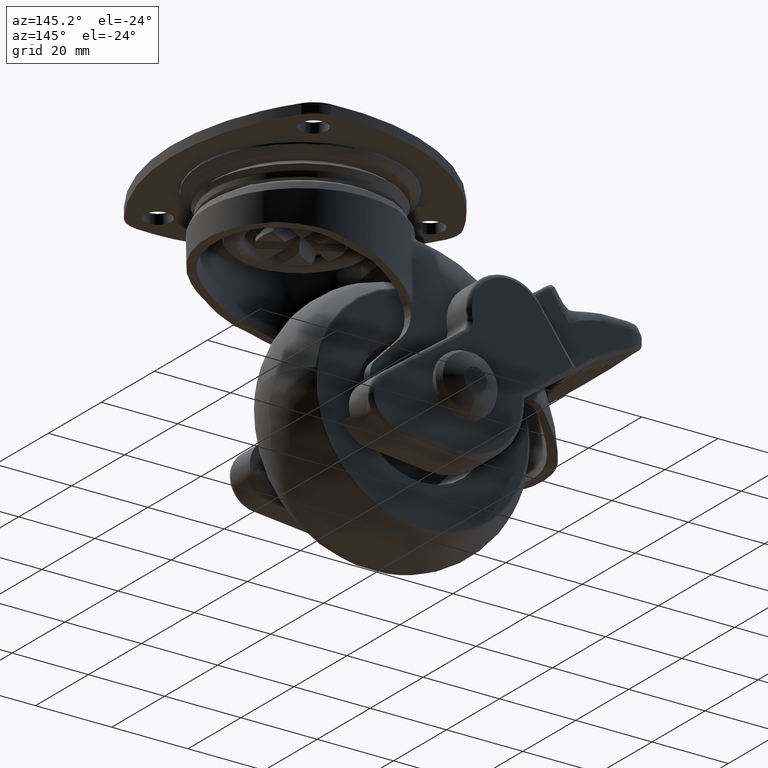
[diagram: clean part render]
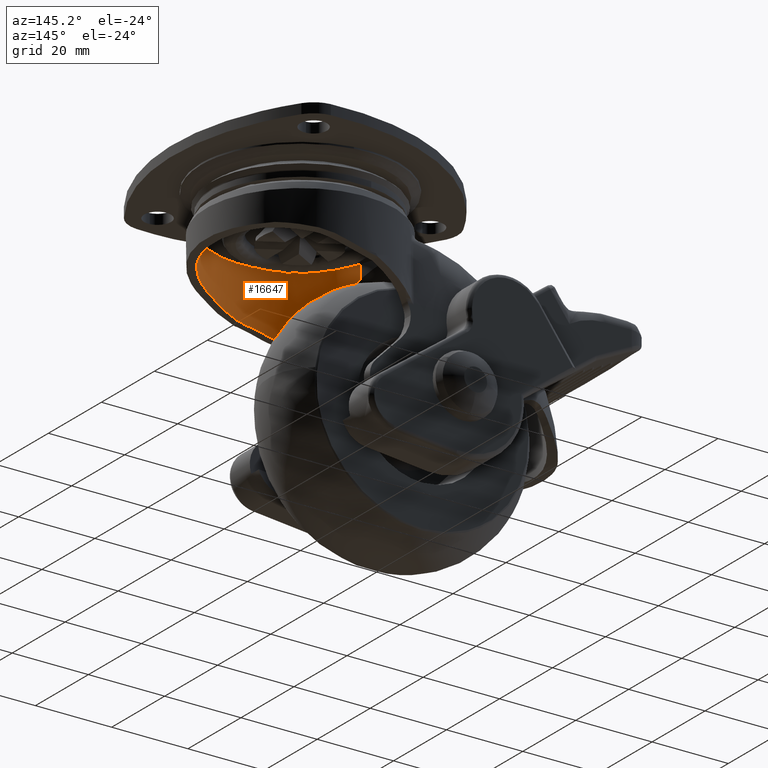
[diagram: same view with one face highlighted and labeled with its STEP entity id]
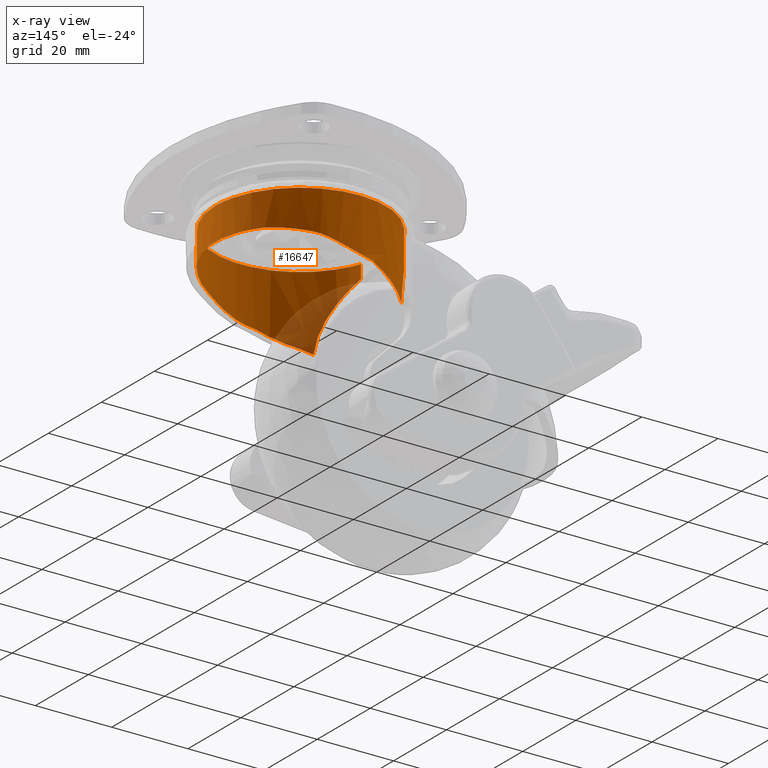
[diagram: x-ray of the same camera — body ghosted, the highlighted face saturated]
A machine part, auxiliary view. The second image highlights one B-rep face of the part: STEP entity #16647.
The next image is the same camera in x-ray: the body ghosted, the highlighted face saturated — about 11% of this face is hidden behind the body in this view.
In plain terms, the highlighted face is a freeform B-spline surface patch.
Its self-contained STEP definition (entity closure, byte-faithful):
#16177=CARTESIAN_POINT('',(-21.068975462576532,-7.502966721896206,-15.300075933190159));
#16178=VERTEX_POINT('',#16177);
#16179=CARTESIAN_POINT('',(-20.510110582208469,8.918061877866347,-16.197612352703320));
#16180=VERTEX_POINT('',#16179);
#16224=CARTESIAN_POINT('',(-20.510111605235540,8.918046791011248,-11.779209252110959));
#16225=VERTEX_POINT('',#16224);
#16226=CARTESIAN_POINT('',(-20.510111605235540,8.918046791011248,-11.779209252110959));
#16227=CARTESIAN_POINT('',(-20.510110582208469,8.918061877866347,-16.197612352703320));
#16228=QUASI_UNIFORM_CURVE('',1,(#16226,#16227),.UNSPECIFIED.,.F.,.U.);
#16229=EDGE_CURVE('',#16225,#16180,#16228,.T.);
#16246=CARTESIAN_POINT('',(-21.068979904705959,-7.502954244876372,-11.779209252110959));
#16247=VERTEX_POINT('',#16246);
#16261=CARTESIAN_POINT('',(-21.068979904705959,-7.502954244876372,-11.779209252110959));
#16262=CARTESIAN_POINT('',(-21.068975462576532,-7.502966721896206,-15.300075933190159));
#16263=QUASI_UNIFORM_CURVE('',1,(#16261,#16262),.UNSPECIFIED.,.F.,.U.);
#16264=EDGE_CURVE('',#16247,#16178,#16263,.T.);
#16269=CARTESIAN_POINT('',(-20.510110308262451,8.918049773846329,-11.289004876179430));
#16270=CARTESIAN_POINT('',(-11.592060534416122,29.428160082108782,-11.289004876179426));
#16271=CARTESIAN_POINT('',(8.918049773846329,20.510110308262451,-11.289004876179430));
#16272=CARTESIAN_POINT('',(29.428160082108782,11.592060534416122,-11.289004876179426));
#16273=CARTESIAN_POINT('',(20.510110308262451,-8.918049773846329,-11.289004876179430));
#16274=CARTESIAN_POINT('',(11.592060534416122,-29.428160082108782,-11.289004876179426));
#16275=CARTESIAN_POINT('',(-8.918049773846329,-20.510110308262451,-11.289004876179430));
#16276=CARTESIAN_POINT('',(-17.814493802778017,-16.641826351335652,-11.289004876179428));
#16277=CARTESIAN_POINT('',(-21.068974267334543,-7.502970075129555,-11.289004876179428));
#16278=CARTESIAN_POINT('',(-20.510110308262451,8.918049773846329,-31.889843774702079));
#16279=CARTESIAN_POINT('',(-11.592060534416122,29.428160082108782,-31.889843774702083));
#16280=CARTESIAN_POINT('',(8.918049773846329,20.510110308262451,-31.889843774702079));
#16281=CARTESIAN_POINT('',(29.428160082108782,11.592060534416122,-31.889843774702083));
#16282=CARTESIAN_POINT('',(20.510110308262451,-8.918049773846329,-31.889843774702079));
#16283=CARTESIAN_POINT('',(11.592060534416122,-29.428160082108782,-31.889843774702083));
#16284=CARTESIAN_POINT('',(-8.918049773846329,-20.510110308262451,-31.889843774702079));
#16285=CARTESIAN_POINT('',(-17.814493802778017,-16.641826351335652,-31.889843774702076));
#16286=CARTESIAN_POINT('',(-21.068974267334543,-7.502970075129555,-31.889843774702083));
#16294=(BOUNDED_SURFACE()B_SPLINE_SURFACE(2,1,((#16269,#16278),(#16270,#16279),(#16271,#16280),(#16272,#16281),(#16273,#16282),(#16274,#16283),(#16275,#16284),(#16276,#16285),(#16277,#16286)),.UNSPECIFIED.,.F.,.F.,.U.)B_SPLINE_SURFACE_WITH_KNOTS((3,2,2,2,3),(2,2),(0.0,37.055656844058717,74.111313688117448,111.166970532176190,130.435912091086690),(0.0,20.600838898522650),.UNSPECIFIED.)GEOMETRIC_REPRESENTATION_ITEM()RATIONAL_B_SPLINE_SURFACE(((1.0,1.0),(0.707106781186548,0.707106781186548),(1.0,1.0),(0.707106781186548,0.707106781186548),(1.0,1.0),(0.707106781186548,0.707106781186548),(1.0,1.0),(0.847695526217005,0.847695526217005),(0.853787705168324,0.853787705168324)))REPRESENTATION_ITEM('')SURFACE());
#16295=CARTESIAN_POINT('',(-14.980744298218060,-16.606430588699752,-31.387384289372250));
#16296=VERTEX_POINT('',#16295);
#16297=CARTESIAN_POINT('',(-14.980744298218060,-16.606430588699752,-31.387384289372250));
#16298=CARTESIAN_POINT('',(-15.002844482402811,-16.586493871052980,-31.091554995201580));
#16299=CARTESIAN_POINT('',(-15.030853953988490,-16.561151184500272,-30.796803040128118));
#16300=CARTESIAN_POINT('',(-15.081229740973200,-16.515243222101329,-30.356221646318168));
#16301=CARTESIAN_POINT('',(-15.099431586538071,-16.498608953594129,-30.209514624708021));
#16302=CARTESIAN_POINT('',(-15.138399588907660,-16.462860884663769,-29.917635449056331));
#16303=CARTESIAN_POINT('',(-15.159175687288251,-16.443738076563410,-29.772358312883679));
#16304=CARTESIAN_POINT('',(-15.269230107199579,-16.342007694624829,-29.049177343233719));
#16305=CARTESIAN_POINT('',(-15.376973524983800,-16.241140134700480,-28.480849555416729));
#16306=CARTESIAN_POINT('',(-15.625516738020060,-16.002161435490589,-27.362537085176619));
#16307=CARTESIAN_POINT('',(-15.766332368465379,-15.864033157509359,-26.812561004714802));
#16308=CARTESIAN_POINT('',(-16.075868655224880,-15.550280644366660,-25.729689135186248));
#16309=CARTESIAN_POINT('',(-16.244600344620171,-15.374650955286020,-25.196797630204770));
#16310=CARTESIAN_POINT('',(-16.515328366419471,-15.081704889055770,-24.409782952870110));
#16311=CARTESIAN_POINT('',(-16.608514376067760,-14.979127293532050,-24.149502918046220));
#16312=CARTESIAN_POINT('',(-16.752329884525270,-14.817585972606540,-23.762146664535049));
#16313=CARTESIAN_POINT('',(-16.800989083271229,-14.762404038845091,-23.633415357317631));
#16314=CARTESIAN_POINT('',(-16.899352567984192,-14.649699296701501,-23.377594633364701));
#16315=CARTESIAN_POINT('',(-16.949016027196251,-14.592224397691171,-23.250606188266541));
#16316=CARTESIAN_POINT('',(-17.199542658346012,-14.299198063955711,-22.620206262785839));
#16317=CARTESIAN_POINT('',(-17.407012223268691,-14.046735916386559,-22.130383787840351));
#16318=CARTESIAN_POINT('',(-17.831342772106630,-13.504002324788180,-21.178644802341669));
#16319=CARTESIAN_POINT('',(-18.048214602574941,-13.213734825672640,-20.716730824989320));
#16320=CARTESIAN_POINT('',(-18.487029360811810,-12.592481265525841,-19.820634330260319));
#16321=CARTESIAN_POINT('',(-18.708982833387871,-12.261507721414810,-19.386448860678829));
#16322=CARTESIAN_POINT('',(-18.986923051466420,-11.819638966852731,-18.861505171168979));
#16323=CARTESIAN_POINT('',(-19.042597499727052,-11.729751063249781,-18.757294130509500));
#16324=CARTESIAN_POINT('',(-19.153562644453789,-11.547667217490019,-18.551349886843109));
#16325=CARTESIAN_POINT('',(-19.319423023049762,-11.271109578312551,-18.246164997854152));
#16326=CARTESIAN_POINT('',(-19.483202931582792,-10.984130852780090,-17.952137869417129));
#16327=CARTESIAN_POINT('',(-19.807141989402329,-10.395854515136341,-17.378970496857949));
#16328=CARTESIAN_POINT('',(-20.018284240714038,-9.984619918449857,-17.016665012702848));
#16329=CARTESIAN_POINT('',(-20.426292883615709,-9.120904723397949,-16.332694418373929));
#16330=CARTESIAN_POINT('',(-20.623175413362510,-8.668444244126842,-16.011014832040850));
#16331=CARTESIAN_POINT('',(-20.857142908924370,-8.074164871854366,-15.635914864609370));
#16332=CARTESIAN_POINT('',(-20.903385102133520,-7.953714214292113,-15.562158185898550));
#16333=CARTESIAN_POINT('',(-20.989589549715639,-7.723141055348307,-15.425306640023351));
#16334=CARTESIAN_POINT('',(-21.029642584563529,-7.613416800033209,-15.361998849182569));
#16335=CARTESIAN_POINT('',(-21.068975462576532,-7.502966721896206,-15.300075933190159));
#16336=B_SPLINE_CURVE_WITH_KNOTS('',3,(#16297,#16298,#16299,#16300,#16301,#16302,#16303,#16304,#16305,#16306,#16307,#16308,#16309,#16310,#16311,#16312,#16313,#16314,#16315,#16316,#16317,#16318,#16319,#16320,#16321,#16322,#16323,#16324,#16325,#16326,#16327,#16328,#16329,#16330,#16331,#16332,#16333,#16334,#16335),.UNSPECIFIED.,.F.,.U.,(4,2,2,2,2,2,2,2,2,2,2,2,2,2,1,2,2,2,2,4),(0.0,0.015625000000000,0.023437500000000,0.031250000000000,0.062499999999999,0.093749999999999,0.124999999999999,0.140624999999998,0.148437499999998,0.156249999999998,0.187499999999998,0.218749999999997,0.249999999999997,0.257812499999997,0.265624999999997,0.281249999999997,0.312499999999997,0.343749999999997,0.351562499999997,0.358567318142314),.UNSPECIFIED.);
#16337=EDGE_CURVE('',#16296,#16178,#16336,.T.);
#16338=ORIENTED_EDGE('',*,*,#16337,.T.);
#16339=ORIENTED_EDGE('',*,*,#16264,.F.);
#16340=CARTESIAN_POINT('',(22.365067328892501,0.0,-11.779209252110959));
#16341=VERTEX_POINT('',#16340);
#16342=CARTESIAN_POINT('',(22.365067328892501,0.0,-11.779209252110959));
#16343=CARTESIAN_POINT('',(22.365067328892497,-22.365067328892497,-11.779209252110963));
#16344=CARTESIAN_POINT('',(0.0,-22.365067328892501,-11.779209252110959));
#16345=CARTESIAN_POINT('',(-15.776376515469096,-22.365067328892501,-11.779209252110963));
#16346=CARTESIAN_POINT('',(-21.068979904705966,-7.502954244876372,-11.779209252110963));
#16354=(BOUNDED_CURVE()B_SPLINE_CURVE(2,(#16342,#16343,#16344,#16345,#16346),.UNSPECIFIED.,.F.,.U.)B_SPLINE_CURVE_WITH_KNOTS((3,2,3),(0.0,0.250000000000000,0.443004121615846),.UNSPECIFIED.)CURVE()GEOMETRIC_REPRESENTATION_ITEM()RATIONAL_B_SPLINE_CURVE((1.0,0.707106781186548,1.0,0.773881606302687,0.896897468259262))REPRESENTATION_ITEM(''));
#16355=EDGE_CURVE('',#16341,#16247,#16354,.T.);
#16356=ORIENTED_EDGE('',*,*,#16355,.F.);
#16357=CARTESIAN_POINT('',(-20.510111605235540,8.918046791011248,-11.779209252110965));
#16358=CARTESIAN_POINT('',(-14.663182994379188,22.365067328892501,-11.779209252110963));
#16359=CARTESIAN_POINT('',(0.0,22.365067328892501,-11.779209252110959));
#16360=CARTESIAN_POINT('',(22.365067328892497,22.365067328892497,-11.779209252110963));
#16361=CARTESIAN_POINT('',(22.365067328892501,0.0,-11.779209252110959));
#16369=(BOUNDED_CURVE()B_SPLINE_CURVE(2,(#16357,#16358,#16359,#16360,#16361),.UNSPECIFIED.,.F.,.U.)B_SPLINE_CURVE_WITH_KNOTS((3,2,3),(0.567705881491353,0.750000000000000,1.0),.UNSPECIFIED.)CURVE()GEOMETRIC_REPRESENTATION_ITEM()RATIONAL_B_SPLINE_CURVE((0.884319981664056,0.786429155436966,1.0,0.707106781186548,1.0))REPRESENTATION_ITEM(''));
#16370=EDGE_CURVE('',#16225,#16341,#16369,.T.);
#16371=ORIENTED_EDGE('',*,*,#16370,.F.);
#16372=ORIENTED_EDGE('',*,*,#16229,.T.);
#16373=CARTESIAN_POINT('',(-14.980744298217980,16.606430588699801,-31.387384289372200));
#16374=VERTEX_POINT('',#16373);
#16375=CARTESIAN_POINT('',(-20.510110582208469,8.918061877866347,-16.197612352703320));
#16376=CARTESIAN_POINT('',(-20.413860984931969,9.139419799160342,-16.355380404835980));
#16377=CARTESIAN_POINT('',(-20.315555638347369,9.355689272134573,-16.518249436228270));
#16378=CARTESIAN_POINT('',(-20.013135353510599,9.994708302019324,-17.025491623793339));
#16379=CARTESIAN_POINT('',(-19.803576845156449,10.402498720120381,-17.385212160152939));
#16380=CARTESIAN_POINT('',(-19.374547003522601,11.181259543742399,-18.144470504615558));
#16381=CARTESIAN_POINT('',(-19.155063947433010,11.552221446421401,-18.544011982425950));
#16382=CARTESIAN_POINT('',(-18.877265971102918,11.993987301690151,-19.068602858397298));
#16383=CARTESIAN_POINT('',(-18.821561118534071,12.081195290374080,-19.174734899206431));
#16384=CARTESIAN_POINT('',(-18.710428276254898,12.252604548571609,-19.388467399487670));
#16385=CARTESIAN_POINT('',(-18.543941803144719,12.505531013281390,-19.711650350990279));
#16386=CARTESIAN_POINT('',(-18.378394492253591,12.746245982134321,-20.042512612872780));
#16387=CARTESIAN_POINT('',(-18.049345143434330,13.212182856426789,-20.714363742347629));
#16388=CARTESIAN_POINT('',(-17.832699584108081,13.502189721438670,-21.175740185725449));
#16389=CARTESIAN_POINT('',(-17.409127893609689,14.044094229507291,-22.125509043433809));
#16390=CARTESIAN_POINT('',(-17.202191260303330,14.295986905496800,-22.613899690212790));
#16391=CARTESIAN_POINT('',(-16.902513937870040,14.646662943843831,-23.367449365444081));
#16392=CARTESIAN_POINT('',(-16.804412926991318,14.759018768763591,-23.622133474303912));
#16393=CARTESIAN_POINT('',(-16.660423525393458,14.920843948209320,-24.009567517642971));
#16394=CARTESIAN_POINT('',(-16.612978896163440,14.973638449400960,-24.139553923230672));
#16395=CARTESIAN_POINT('',(-16.519590899439329,15.076605647453720,-24.400318410149922));
#16396=CARTESIAN_POINT('',(-16.473601553411861,15.126830218124660,-24.531219233135690));
#16397=CARTESIAN_POINT('',(-16.247339306051629,15.371767383007990,-25.188329339312560));
#16398=CARTESIAN_POINT('',(-16.078096526454541,15.547983874009940,-25.722334308785641));
#16399=CARTESIAN_POINT('',(-15.767609472103681,15.862771029741040,-26.807661975545759));
#16400=CARTESIAN_POINT('',(-15.626353901521361,16.001347369647480,-27.358980212113298));
#16401=CARTESIAN_POINT('',(-15.377061775829210,16.241060586198799,-28.480244725533488));
#16402=CARTESIAN_POINT('',(-15.269008936282789,16.342215093230390,-29.050182062631521));
#16403=CARTESIAN_POINT('',(-15.158702717711551,16.444173361342511,-29.775579843346691));
#16404=CARTESIAN_POINT('',(-15.137893900776220,16.463325026893241,-29.921258842376961));
#16405=CARTESIAN_POINT('',(-15.098997256388580,16.499005748050461,-30.212936123034599));
#16406=CARTESIAN_POINT('',(-15.080890512171120,16.515552328751749,-30.359055438449211));
#16407=CARTESIAN_POINT('',(-15.030716693887189,16.561274956360279,-30.798272585418040));
#16408=CARTESIAN_POINT('',(-15.002794129773260,16.586539143679300,-31.092228872213990));
#16409=CARTESIAN_POINT('',(-14.980744298217980,16.606430588699801,-31.387384289372200));
#16410=B_SPLINE_CURVE_WITH_KNOTS('',3,(#16375,#16376,#16377,#16378,#16379,#16380,#16381,#16382,#16383,#16384,#16385,#16386,#16387,#16388,#16389,#16390,#16391,#16392,#16393,#16394,#16395,#16396,#16397,#16398,#16399,#16400,#16401,#16402,#16403,#16404,#16405,#16406,#16407,#16408,#16409),.UNSPECIFIED.,.F.,.U.,(4,2,2,2,2,1,2,2,2,2,2,2,2,2,2,2,2,4),(0.672047431919607,0.687500000000000,0.718750000000000,0.750000000000000,0.757812500000000,0.765625000000000,0.781250000000000,0.812500000000000,0.843750000000000,0.859375000000001,0.867187500000001,0.875000000000001,0.906250000000000,0.937500000000000,0.968750000000000,0.976562500000000,0.984375000000000,1.0),.UNSPECIFIED.);
#16411=EDGE_CURVE('',#16180,#16374,#16410,.T.);
#16412=ORIENTED_EDGE('',*,*,#16411,.T.);
#16413=CARTESIAN_POINT('',(-12.722246999999999,18.394038922892548,-29.978253399278248));
#16414=VERTEX_POINT('',#16413);
#16415=CARTESIAN_POINT('',(-12.722246999999999,18.394038922892541,-29.978253399278231));
#16416=CARTESIAN_POINT('',(-13.135489484180599,18.108219534520149,-30.162763688341801));
#16417=CARTESIAN_POINT('',(-13.529332160880530,17.815276831687989,-30.373138604118029));
#16418=CARTESIAN_POINT('',(-14.093590296979251,17.367343473818661,-30.725704131487991));
#16419=CARTESIAN_POINT('',(-14.277242667801660,17.216614903408061,-30.849425946764189));
#16420=CARTESIAN_POINT('',(-14.635937576909161,16.912741296796529,-31.109370511228992));
#16421=CARTESIAN_POINT('',(-14.811330615977081,16.759259520884509,-31.245925322219641));
#16422=CARTESIAN_POINT('',(-14.980744298217980,16.606430588699801,-31.387384289372200));
#16423=B_SPLINE_CURVE_WITH_KNOTS('',3,(#16415,#16416,#16417,#16418,#16419,#16420,#16421,#16422),.UNSPECIFIED.,.F.,.U.,(4,2,2,4),(0.0,0.500000000000001,0.750000000000000,1.0),.UNSPECIFIED.);
#16424=EDGE_CURVE('',#16414,#16374,#16423,.T.);
#16425=ORIENTED_EDGE('',*,*,#16424,.F.);
#16426=CARTESIAN_POINT('',(-3.432260999999900,22.100131697656799,-26.234016399278101));
#16427=VERTEX_POINT('',#16426);
#16428=CARTESIAN_POINT('',(-12.722247000000010,18.394038922892548,-29.978253399278231));
#16429=CARTESIAN_POINT('',(-8.502371362136884,21.312718197152488,-28.277474248622241));
#16430=CARTESIAN_POINT('',(-3.432260999999893,22.100131697656789,-26.234016399278119));
#16438=(BOUNDED_CURVE()B_SPLINE_CURVE(2,(#16428,#16429,#16430),.UNSPECIFIED.,.F.,.U.)CURVE()GEOMETRIC_REPRESENTATION_ITEM()QUASI_UNIFORM_CURVE()RATIONAL_B_SPLINE_CURVE((1.0,0.974679507242890,1.0))REPRESENTATION_ITEM(''));
#16439=EDGE_CURVE('',#16414,#16427,#16438,.T.);
#16440=ORIENTED_EDGE('',*,*,#16439,.T.);
#16441=CARTESIAN_POINT('',(5.009995439388050,21.796701179839349,-23.900018815795399));
#16442=VERTEX_POINT('',#16441);
#16443=CARTESIAN_POINT('',(-3.432260999999900,22.100131697656799,-26.234016399278101));
#16444=CARTESIAN_POINT('',(-3.046751450576412,22.160002171500299,-26.172616521197892));
#16445=CARTESIAN_POINT('',(-2.659253225433407,22.209835800701011,-26.104999670711059));
#16446=CARTESIAN_POINT('',(-2.165264191603311,22.260231310500931,-26.011018998074860));
#16447=CARTESIAN_POINT('',(-2.060618725612633,22.270161154418869,-25.990669086244939));
#16448=CARTESIAN_POINT('',(-1.851825365593397,22.288494761013862,-25.949183358362621));
#16449=CARTESIAN_POINT('',(-1.539087867681620,22.313737023546832,-25.885720708100092));
#16450=CARTESIAN_POINT('',(-1.227700377387041,22.332287128855761,-25.818569423214502));
#16451=CARTESIAN_POINT('',(-0.606707399969439,22.360659684463300,-25.679380556639838));
#16452=CARTESIAN_POINT('',(-0.195087353799438,22.367945201862700,-25.580074308167561));
#16453=CARTESIAN_POINT('',(1.032763123731253,22.356189082511602,-25.262817499208658));
#16454=CARTESIAN_POINT('',(1.841994134587527,22.303632530882521,-25.025549174673941));
#16455=CARTESIAN_POINT('',(3.042102207556723,22.160863472325278,-24.631427672606510));
#16456=CARTESIAN_POINT('',(3.439845859478893,22.102592700199828,-24.493678827624151));
#16457=CARTESIAN_POINT('',(4.033033253375631,21.999341477385560,-24.277501292280220));
#16458=CARTESIAN_POINT('',(4.230478038175824,21.962220862619692,-24.203737365315359));
#16459=CARTESIAN_POINT('',(4.622373561632518,21.883094084355410,-24.053738980343681));
#16460=CARTESIAN_POINT('',(4.816884596908421,21.841087308740761,-23.977489051744211));
#16461=CARTESIAN_POINT('',(5.009995439388050,21.796701179839349,-23.900018815795399));
#16462=B_SPLINE_CURVE_WITH_KNOTS('',3,(#16443,#16444,#16445,#16446,#16447,#16448,#16449,#16450,#16451,#16452,#16453,#16454,#16455,#16456,#16457,#16458,#16459,#16460,#16461),.UNSPECIFIED.,.F.,.U.,(4,2,2,1,2,2,2,2,2,4),(0.891692992172468,0.906249999999999,0.910156249999999,0.914062499999999,0.921874999999999,0.937500000000000,0.968750000000000,0.984375000000000,0.992187500000000,1.0),.UNSPECIFIED.);
#16463=EDGE_CURVE('',#16427,#16442,#16462,.T.);
#16464=ORIENTED_EDGE('',*,*,#16463,.T.);
#16465=CARTESIAN_POINT('',(7.363025474457230,21.118288105061549,-22.956051600782050));
#16466=VERTEX_POINT('',#16465);
#16467=CARTESIAN_POINT('',(5.009995439388050,21.796701179839349,-23.900018815795399));
#16468=CARTESIAN_POINT('',(6.205109160635685,21.522002993008194,-23.420573949280023));
#16469=CARTESIAN_POINT('',(7.363025474457230,21.118288105061549,-22.956051600782050));
#16477=(BOUNDED_CURVE()B_SPLINE_CURVE(2,(#16467,#16468,#16469),.UNSPECIFIED.,.F.,.U.)CURVE()GEOMETRIC_REPRESENTATION_ITEM()QUASI_UNIFORM_CURVE()RATIONAL_B_SPLINE_CURVE((1.0,0.998500214844853,1.0))REPRESENTATION_ITEM(''));
#16478=EDGE_CURVE('',#16442,#16466,#16477,.T.);
#16479=ORIENTED_EDGE('',*,*,#16478,.T.);
#16480=CARTESIAN_POINT('',(10.608846700321600,19.688793978173749,-22.014955640055749));
#16481=VERTEX_POINT('',#16480);
#16482=CARTESIAN_POINT('',(10.608846700321600,19.688793978173749,-22.014955640055749));
#16483=CARTESIAN_POINT('',(10.550034187441350,19.720483829226509,-22.025833346359050));
#16484=CARTESIAN_POINT('',(10.491172699613889,19.751859842474168,-22.037040474156779));
#16485=CARTESIAN_POINT('',(9.926086086194891,20.049850811833259,-22.147733726757139));
#16486=CARTESIAN_POINT('',(9.416434618710682,20.293803267890439,-22.271390564578869));
#16487=CARTESIAN_POINT('',(8.392551493544488,20.738195954144562,-22.572199142512240));
#16488=CARTESIAN_POINT('',(7.878312217350787,20.938630104578859,-22.749333609582131));
#16489=CARTESIAN_POINT('',(7.363025474457230,21.118288105061549,-22.956051600782050));
#16490=B_SPLINE_CURVE_WITH_KNOTS('',3,(#16482,#16483,#16484,#16485,#16486,#16487,#16488,#16489),.UNSPECIFIED.,.F.,.U.,(4,2,2,4),(0.933863155510959,0.937500000000000,0.968750000000000,1.0),.UNSPECIFIED.);
#16491=EDGE_CURVE('',#16481,#16466,#16490,.T.);
#16492=ORIENTED_EDGE('',*,*,#16491,.F.);
#16493=CARTESIAN_POINT('',(18.271222999999999,12.898009408826020,-20.597744399278149));
#16494=VERTEX_POINT('',#16493);
#16495=CARTESIAN_POINT('',(10.608846700321600,19.688793978173749,-22.014955640055749));
#16496=CARTESIAN_POINT('',(15.238418560518925,17.194257339241595,-21.158683174989712));
#16497=CARTESIAN_POINT('',(18.271222999999999,12.898009408826100,-20.597744399278142));
#16505=(BOUNDED_CURVE()B_SPLINE_CURVE(2,(#16495,#16496,#16497),.UNSPECIFIED.,.F.,.U.)CURVE()GEOMETRIC_REPRESENTATION_ITEM()QUASI_UNIFORM_CURVE()RATIONAL_B_SPLINE_CURVE((1.0,0.973451169598527,1.0))REPRESENTATION_ITEM(''));
#16506=EDGE_CURVE('',#16481,#16494,#16505,.T.);
#16507=ORIENTED_EDGE('',*,*,#16506,.T.);
#16508=CARTESIAN_POINT('',(21.431923999999999,6.392876526581710,-20.425798399278200));
#16509=VERTEX_POINT('',#16508);
#16510=CARTESIAN_POINT('',(18.271222999999999,12.898009408826020,-20.597744399278149));
#16511=CARTESIAN_POINT('',(20.384487853308780,9.904374331583496,-20.482780206693374));
#16512=CARTESIAN_POINT('',(21.431924000000009,6.392876526581736,-20.425798399278221));
#16520=(BOUNDED_CURVE()B_SPLINE_CURVE(2,(#16510,#16511,#16512),.UNSPECIFIED.,.F.,.U.)CURVE()GEOMETRIC_REPRESENTATION_ITEM()QUASI_UNIFORM_CURVE()RATIONAL_B_SPLINE_CURVE((1.0,0.986841865835870,1.0))REPRESENTATION_ITEM(''));
#16521=EDGE_CURVE('',#16494,#16509,#16520,.T.);
#16522=ORIENTED_EDGE('',*,*,#16521,.T.);
#16523=CARTESIAN_POINT('',(21.431923999999999,-6.392876526581710,-20.425798399278200));
#16524=VERTEX_POINT('',#16523);
#16525=CARTESIAN_POINT('',(21.431923999999981,6.392876526581717,-20.425798399278172));
#16526=CARTESIAN_POINT('',(23.338839603289703,3.035766E-014,-20.227879369437538));
#16527=CARTESIAN_POINT('',(21.431923999999999,-6.392876526581655,-20.425798399278172));
#16535=(BOUNDED_CURVE()B_SPLINE_CURVE(2,(#16525,#16526,#16527),.UNSPECIFIED.,.F.,.U.)CURVE()GEOMETRIC_REPRESENTATION_ITEM()QUASI_UNIFORM_CURVE()RATIONAL_B_SPLINE_CURVE((1.0,0.958276748503815,1.0))REPRESENTATION_ITEM(''));
#16536=EDGE_CURVE('',#16509,#16524,#16535,.T.);
#16537=ORIENTED_EDGE('',*,*,#16536,.T.);
#16538=CARTESIAN_POINT('',(18.271222999999999,-12.898009408826240,-20.597744399278149));
#16539=VERTEX_POINT('',#16538);
#16540=CARTESIAN_POINT('',(21.431924000000009,-6.392876526581712,-20.425798399278221));
#16541=CARTESIAN_POINT('',(20.384487853308794,-9.904374331583481,-20.482780206693366));
#16542=CARTESIAN_POINT('',(18.271222999999999,-12.898009408826240,-20.597744399278149));
#16550=(BOUNDED_CURVE()B_SPLINE_CURVE(2,(#16540,#16541,#16542),.UNSPECIFIED.,.F.,.U.)CURVE()GEOMETRIC_REPRESENTATION_ITEM()QUASI_UNIFORM_CURVE()RATIONAL_B_SPLINE_CURVE((1.0,0.986841865835872,1.0))REPRESENTATION_ITEM(''));
#16551=EDGE_CURVE('',#16524,#16539,#16550,.T.);
#16552=ORIENTED_EDGE('',*,*,#16551,.T.);
#16553=CARTESIAN_POINT('',(10.608846700321600,-19.688793978173749,-22.014955640055749));
#16554=VERTEX_POINT('',#16553);
#16555=CARTESIAN_POINT('',(18.271222999999999,-12.898009408826240,-20.597744399278149));
#16556=CARTESIAN_POINT('',(15.238418571976688,-17.194257323010600,-21.158683172870514));
#16557=CARTESIAN_POINT('',(10.608846700321600,-19.688793978173749,-22.014955640055749));
#16565=(BOUNDED_CURVE()B_SPLINE_CURVE(2,(#16555,#16556,#16557),.UNSPECIFIED.,.F.,.U.)CURVE()GEOMETRIC_REPRESENTATION_ITEM()QUASI_UNIFORM_CURVE()RATIONAL_B_SPLINE_CURVE((1.0,0.973451169791211,1.0))REPRESENTATION_ITEM(''));
#16566=EDGE_CURVE('',#16539,#16554,#16565,.T.);
#16567=ORIENTED_EDGE('',*,*,#16566,.T.);
#16568=CARTESIAN_POINT('',(7.363025474457230,-21.118288105061801,-22.956051600782050));
#16569=VERTEX_POINT('',#16568);
#16570=CARTESIAN_POINT('',(7.363025474457230,-21.118288105061801,-22.956051600782050));
#16571=CARTESIAN_POINT('',(7.880859706402601,-20.937741906317171,-22.748311631379391));
#16572=CARTESIAN_POINT('',(8.397547032928037,-20.736244749759170,-22.570482724040449));
#16573=CARTESIAN_POINT('',(9.426108758422647,-20.289384322017781,-22.268800723774739));
#16574=CARTESIAN_POINT('',(9.937990933717078,-20.044027209915249,-22.144965522476131));
#16575=CARTESIAN_POINT('',(10.500512236853391,-19.746879267604950,-22.035264266115728));
#16576=CARTESIAN_POINT('',(10.554700653139751,-19.717969398981900,-22.024970261511658));
#16577=CARTESIAN_POINT('',(10.608846700321600,-19.688793978173749,-22.014955640055749));
#16578=B_SPLINE_CURVE_WITH_KNOTS('',3,(#16570,#16571,#16572,#16573,#16574,#16575,#16576,#16577),.UNSPECIFIED.,.F.,.U.,(4,2,2,4),(0.0,0.031250000000000,0.062500000000000,0.065834037193435),.UNSPECIFIED.);
#16579=EDGE_CURVE('',#16569,#16554,#16578,.T.);
#16580=ORIENTED_EDGE('',*,*,#16579,.F.);
#16581=CARTESIAN_POINT('',(5.009995439388019,-21.796701179839250,-23.900018815795349));
#16582=VERTEX_POINT('',#16581);
#16583=CARTESIAN_POINT('',(7.363025474457230,-21.118288105061801,-22.956051600782050));
#16584=CARTESIAN_POINT('',(6.205109160635893,-21.522002993008119,-23.420573949279941));
#16585=CARTESIAN_POINT('',(5.009995439388034,-21.796701179839250,-23.900018815795359));
#16593=(BOUNDED_CURVE()B_SPLINE_CURVE(2,(#16583,#16584,#16585),.UNSPECIFIED.,.F.,.U.)CURVE()GEOMETRIC_REPRESENTATION_ITEM()QUASI_UNIFORM_CURVE()RATIONAL_B_SPLINE_CURVE((1.0,0.998500214844830,1.0))REPRESENTATION_ITEM(''));
#16594=EDGE_CURVE('',#16569,#16582,#16593,.T.);
#16595=ORIENTED_EDGE('',*,*,#16594,.T.);
#16596=CARTESIAN_POINT('',(-3.432260999999900,-22.100131697656799,-26.234016399278101));
#16597=VERTEX_POINT('',#16596);
#16598=CARTESIAN_POINT('',(5.009995439388019,-21.796701179839250,-23.900018815795349));
#16599=CARTESIAN_POINT('',(4.816252783170113,-21.841233146446399,-23.977742686096260));
#16600=CARTESIAN_POINT('',(4.621479255728207,-21.883276477614480,-24.054082006061559));
#16601=CARTESIAN_POINT('',(4.231245113850656,-21.962067874054799,-24.203444064387419));
#16602=CARTESIAN_POINT('',(4.035572655613644,-21.998865106340180,-24.276552104029228));
#16603=CARTESIAN_POINT('',(3.446889662488321,-22.101445398474659,-24.491161668699611));
#16604=CARTESIAN_POINT('',(3.052214086226864,-22.159422641936061,-24.627949826089669));
#16605=CARTESIAN_POINT('',(1.861510312342617,-22.301797074353029,-25.019452552529259));
#16606=CARTESIAN_POINT('',(1.058814948728095,-22.354734752359231,-25.255325363540440));
#16607=CARTESIAN_POINT('',(-0.564676563413692,-22.372670794412780,-25.676309266353361));
#16608=CARTESIAN_POINT('',(-1.385470737676737,-22.337697578087479,-25.861422976583938));
#16609=CARTESIAN_POINT('',(-2.423183988294986,-22.234386219204609,-26.060357292453521));
#16610=CARTESIAN_POINT('',(-2.631313591544373,-22.210734321442491,-26.098519500603292));
#16611=CARTESIAN_POINT('',(-2.944399045398683,-22.170652573799000,-26.153306568918989));
#16612=CARTESIAN_POINT('',(-3.049010147638595,-22.156509297067512,-26.171175814054319));
#16613=CARTESIAN_POINT('',(-3.246488285216501,-22.128384701612930,-26.204086965847420));
#16614=CARTESIAN_POINT('',(-3.339446141727929,-22.114546323229529,-26.219233890041529));
#16615=CARTESIAN_POINT('',(-3.432260999999900,-22.100131697656799,-26.234016399278101));
#16616=B_SPLINE_CURVE_WITH_KNOTS('',3,(#16598,#16599,#16600,#16601,#16602,#16603,#16604,#16605,#16606,#16607,#16608,#16609,#16610,#16611,#16612,#16613,#16614,#16615),.UNSPECIFIED.,.F.,.U.,(4,2,2,2,2,2,2,2,4),(0.0,0.007812500000000,0.015625000000000,0.031250000000000,0.062500000000000,0.093750000000000,0.101562500000000,0.105468750000000,0.108953018492956),.UNSPECIFIED.);
#16617=EDGE_CURVE('',#16582,#16597,#16616,.T.);
#16618=ORIENTED_EDGE('',*,*,#16617,.T.);
#16619=CARTESIAN_POINT('',(-12.722246999999999,-18.394038922892548,-29.978253399278248));
#16620=VERTEX_POINT('',#16619);
#16621=CARTESIAN_POINT('',(-3.432260999999839,-22.100131697656799,-26.234016399278101));
#16622=CARTESIAN_POINT('',(-8.502371362136849,-21.312718197152510,-28.277474248622234));
#16623=CARTESIAN_POINT('',(-12.722246999999999,-18.394038922892548,-29.978253399278220));
#16631=(BOUNDED_CURVE()B_SPLINE_CURVE(2,(#16621,#16622,#16623),.UNSPECIFIED.,.F.,.U.)CURVE()GEOMETRIC_REPRESENTATION_ITEM()QUASI_UNIFORM_CURVE()RATIONAL_B_SPLINE_CURVE((1.0,0.974679507242890,1.0))REPRESENTATION_ITEM(''));
#16632=EDGE_CURVE('',#16597,#16620,#16631,.T.);
#16633=ORIENTED_EDGE('',*,*,#16632,.T.);
#16634=CARTESIAN_POINT('',(-14.980744298218040,-16.606430588699741,-31.387384289372271));
#16635=CARTESIAN_POINT('',(-14.644801801687970,-16.909485999225261,-31.106875194987410));
#16636=CARTESIAN_POINT('',(-14.289454506651239,-17.211600673150610,-30.848553768209619));
#16637=CARTESIAN_POINT('',(-13.724416369827900,-17.660535091962380,-30.494805922789588));
#16638=CARTESIAN_POINT('',(-13.530550289830909,-17.809604988118600,-30.382456943291739));
#16639=CARTESIAN_POINT('',(-13.132038163733320,-18.105452069603611,-30.169912152909038));
#16640=CARTESIAN_POINT('',(-12.929053827093780,-18.251000868737989,-30.070591406400268));
#16641=CARTESIAN_POINT('',(-12.722246999999999,-18.394038922892541,-29.978253399278231));
#16642=B_SPLINE_CURVE_WITH_KNOTS('',3,(#16634,#16635,#16636,#16637,#16638,#16639,#16640,#16641),.UNSPECIFIED.,.F.,.U.,(4,2,2,4),(0.0,0.500000000000001,0.750000000000000,1.0),.UNSPECIFIED.);
#16643=EDGE_CURVE('',#16296,#16620,#16642,.T.);
#16644=ORIENTED_EDGE('',*,*,#16643,.F.);
#16645=EDGE_LOOP('',(#16338,#16339,#16356,#16371,#16372,#16412,#16425,#16440,#16464,#16479,#16492,#16507,#16522,#16537,#16552,#16567,#16580,#16595,#16618,#16633,#16644));
#16646=FACE_OUTER_BOUND('',#16645,.T.);
#16647=ADVANCED_FACE('',(#16646),#16294,.F.);